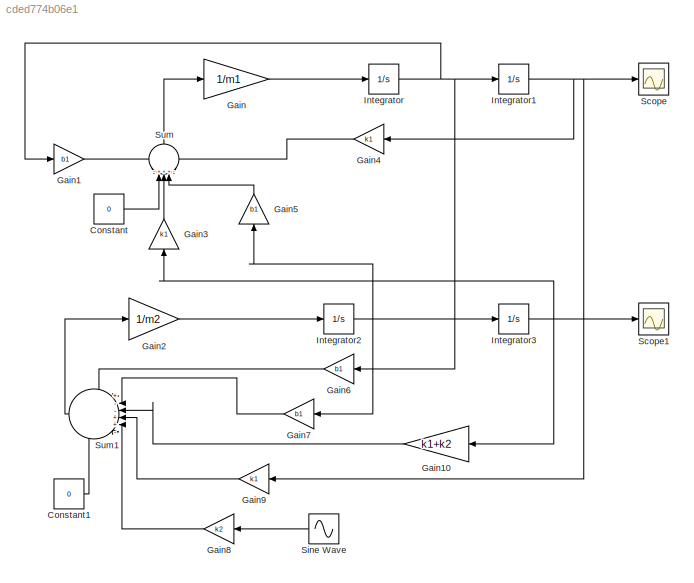
MODEL slx_cded774b06e1
KIND model
CONFIG AbsTol = auto
CONFIG EnableMultiTasking = off
CONFIG FixedStep = auto
CONFIG InitFcn = m1=290; \nb1=1000;  \nm2=59; \nk1=16182; \nk2=19000; 
CONFIG MaxStep = auto
CONFIG MinStep = auto
CONFIG RelTol = 1e-3
CONFIG SampleTimeConstraint = Unconstrained
CONFIG SolverName = VariableStepAuto
CONFIG StartTime = 0.0
CONFIG StopTime = 10.0
BLOCK [Constant] Constant
  Value = 0
BLOCK [Constant] Constant1
  Value = 0
BLOCK [Gain] Gain
  Gain = 1/m1
BLOCK [Gain] Gain1
  Gain = b1
BLOCK [Gain] Gain10
  Gain = k1+k2
  NameLocation = top
BLOCK [Gain] Gain2
  Gain = 1/m2
BLOCK [Gain] Gain3
  Gain = k1
  NameLocation = right
BLOCK [Gain] Gain4
  Gain = k1
  NameLocation = top
BLOCK [Gain] Gain5
  Gain = b1
  NameLocation = right
BLOCK [Gain] Gain6
  Gain = b1
  NameLocation = top
BLOCK [Gain] Gain7
  Gain = b1
  NameLocation = top
BLOCK [Gain] Gain8
  Gain = k2
  NameLocation = top
BLOCK [Gain] Gain9
  Gain = k1
  NameLocation = top
BLOCK [Integrator] Integrator
BLOCK [Integrator] Integrator1
BLOCK [Integrator] Integrator2
BLOCK [Integrator] Integrator3
BLOCK [Scope] Scope
  Floating = off
  NumInputPorts = 1
  ScopeSpecificationString = Simulink.scopes.TimeScopeBlockCfg('CurrentConfiguration', extmgr.ConfigurationSet(extmgr.Configuration('Core','General UI',true),extmgr.Configuration('Core','Source UI',true),extmgr.Configuration('Sources','WiredSimulink',true),extmgr.Configuration('Visuals','Time Domain',true,'SerializedDisplays',{struct('MinYLimReal','-0.00448','MaxYLimReal','0.00554','YLabelReal','','MinYLimMag','0.00000','MaxY...<+1449ch>
BLOCK [Scope] Scope1
  Floating = off
  NumInputPorts = 1
  ScopeSpecificationString = Simulink.scopes.TimeScopeBlockCfg('CurrentConfiguration', extmgr.ConfigurationSet(extmgr.Configuration('Core','General UI',true),extmgr.Configuration('Core','Source UI',true),extmgr.Configuration('Sources','WiredSimulink',true,'DataLoggingVariableName','ScopeData1'),extmgr.Configuration('Visuals','Time Domain',true,'SerializedDisplays',{struct('MinYLimReal','-0.0081','MaxYLimReal','0.01315','YLabe...<+1512ch>
BLOCK [Sin] Sine Wave
  Amplitude = 0.05
  Frequency = 20*pi
  NameLocation = top
  SampleTime = 0
BLOCK [Sum] Sum
  Inputs = -+++-
  NameLocation = right
BLOCK [Sum] Sum1
  Inputs = +--++-
  NameLocation = top
LINE Constant1:1 -> Sum1:6
LINE Constant:1 -> Sum:2
LINE Gain10:1 -> Sum1:3
LINE Gain1:1 -> Sum:1
LINE Gain2:1 -> Integrator2:1
LINE Gain3:1 -> Sum:3
LINE Gain4:1 -> Sum:5
LINE Gain5:1 -> Sum:4
LINE Gain6:1 -> Sum1:1
LINE Gain7:1 -> Sum1:2
LINE Gain8:1 -> Sum1:5
LINE Gain9:1 -> Sum1:4
LINE Gain:1 -> Integrator:1
NET Integrator1:1 -> Gain4:1, Gain9:1, Scope:1
NET Integrator2:1 -> Gain5:1, Gain7:1, Integrator3:1
NET Integrator3:1 -> Gain10:1, Gain3:1, Scope1:1
NET Integrator:1 -> Gain1:1, Gain6:1, Integrator1:1
LINE Sine Wave:1 -> Gain8:1
LINE Sum1:1 -> Gain2:1
LINE Sum:1 -> Gain:1
note: NET lines group one-source signal fan-out (src -> all destinations, sorted); 1:1 wires keep LINE
